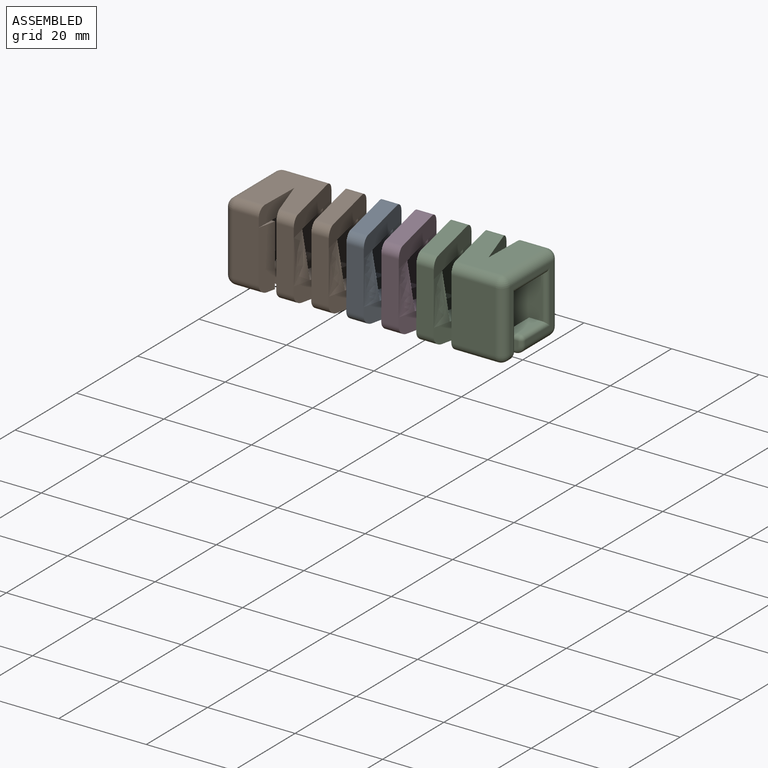
[diagram: assembled view]
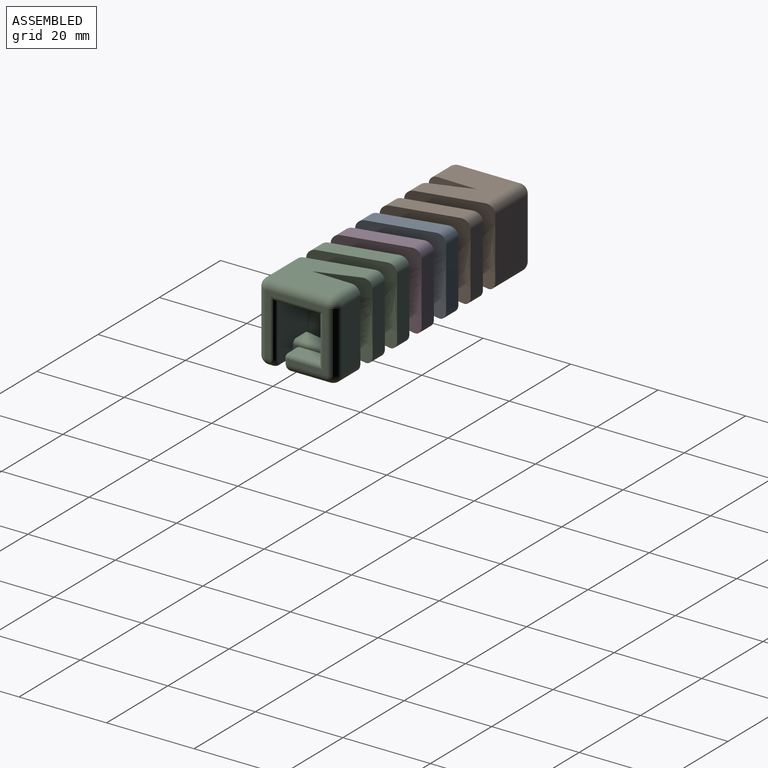
[diagram: assembled view, second angle]
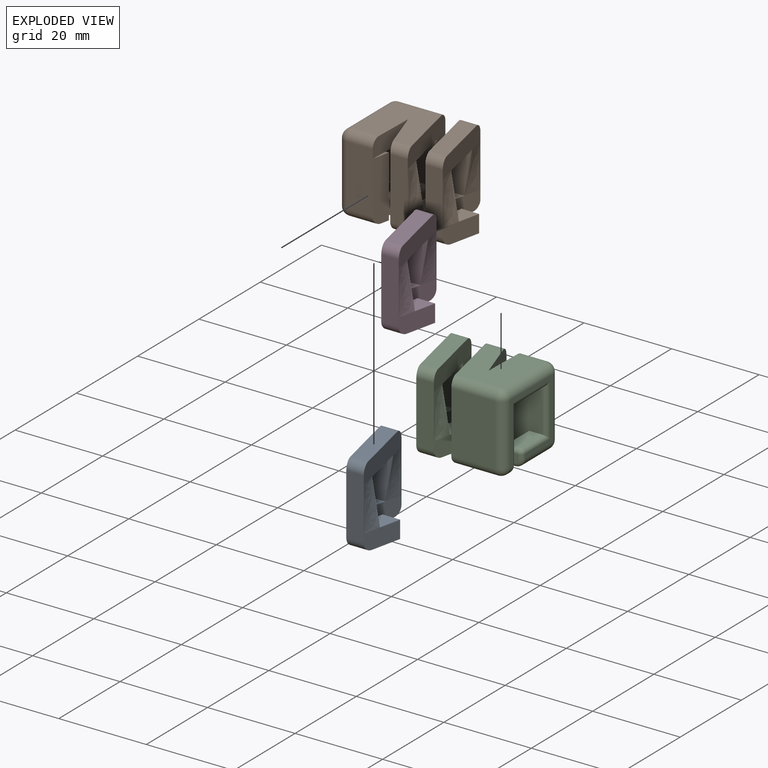
[diagram: exploded view]
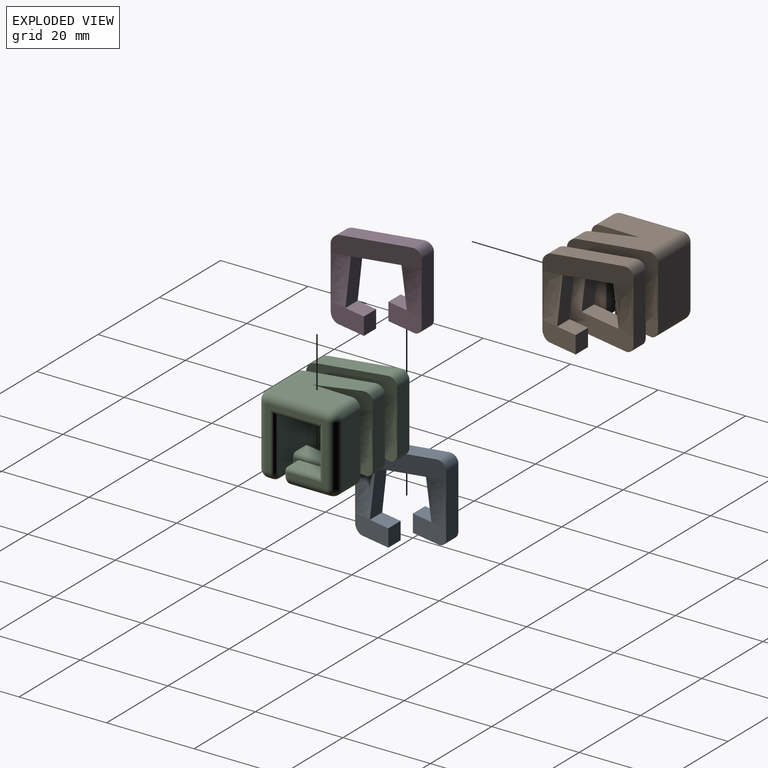
[diagram: exploded view, second angle]
ASSEMBLY  parts=4 mates=3
PART A: 26 faces, bbox 12x18x18 mm
  f0: bspline ~10x4mm, area 40.5mm2, adj f1,f3,f6,f10
  f1: plane 10x5.78mm, normal (0,1,0), area 40mm2, adj f0,f2,f8,f9
  f2: bspline ~10x4mm, area 40.5mm2, adj f1,f3,f4,f11
  f3: plane 14x4mm, normal (0,-1,0), area 56mm2, adj f0,f2,f4,f6,f10,f11,f23,f25
  f4: plane 9x4mm, normal (0.98,-0.22,0), area 36mm2, adj f2,f3,f5,f7,f8,f23
  f5: plane 4x4mm, normal (0,1,0), area 16mm2, adj f4,f6,f7,f8
  f6: plane 9x4mm, normal (-0.98,0.22,0), area 36mm2, adj f0,f3,f5,f7,f8,f23
  f7: plane 7x5.56mm, normal (0,0,-1), area 28mm2, adj f4,f5,f6,f23
  f8: plane 5.11x5mm, normal (0,0,1), area 20mm2, adj f1,f4,f5,f6
  f9: plane 10x6.22mm, normal (0,0,-1), area 40mm2, adj f1,f10,f11,f15
  f10: plane 18x4mm, normal (-0.98,-0.22,0), area 72mm2, adj f0,f3,f9,f12,f13,f16,f24,f25
  f11: plane 18x4mm, normal (0.98,0.22,0), area 72mm2, adj f2,f3,f9,f12,f13,f14,f24,f25
  f12: plane 14x4mm, normal (0,1,0), area 56mm2, adj f10,f11,f14,f16,f17,f19,f22,f24
  f13: plane 14x7.11mm, normal (0,0,1), area 56mm2, adj f10,f11,f24,f25
  f14: bspline ~10x4mm, area 40.5mm2, adj f11,f12,f15,f19
  f15: plane 10x5.78mm, normal (0,-1,0), area 40mm2, adj f9,f14,f16,f21
  f16: bspline ~10x4mm, area 40.5mm2, adj f10,f12,f15,f17
  f17: plane 9x4mm, normal (-0.98,0.22,0), area 36mm2, adj f12,f16,f18,f20,f21,f22
  f18: plane 4x4mm, normal (0,-1,0), area 16mm2, adj f17,f19,f20,f21
  f19: plane 9x4mm, normal (0.98,-0.22,0), area 36mm2, adj f12,f14,f18,f20,f21,f22
  f20: plane 7x5.56mm, normal (0,0,-1), area 28mm2, adj f17,f18,f19,f22
  f21: plane 5.11x5mm, normal (0,0,1), area 20mm2, adj f15,f17,f18,f19
  f22: cylinder r=2mm len=4.44mm, axis (1,0,0), area 12.6mm2, adj f12,f17,f19,f20
  f23: cylinder r=2mm len=4.44mm, axis (1,0,0), area 12.6mm2, adj f3,f4,f6,f7
  f24: cylinder r=2mm len=4.44mm, axis (1,0,0), area 12.6mm2, adj f10,f11,f12,f13
  f25: cylinder r=2mm len=4.44mm, axis (-1,0,0), area 12.6mm2, adj f3,f10,f11,f13
PART B: 86 faces, bbox 26.2x18x18.2 mm
  f0: plane 10x6.22mm, normal (0,0,1), area 40mm2, adj f1,f3,f20,f45
  f1: plane 18x4mm, normal (-0.98,0.22,0), area 72mm2, adj f0,f2,f4,f5,f19,f44,f64,f65
  f2: plane 14x4mm, normal (0,-1,0), area 56mm2, adj f1,f3,f23,f28,f44,f46,f62,f65
  f3: plane 18x4mm, normal (0.98,-0.22,0), area 72mm2, adj f0,f2,f4,f5,f21,f46,f64,f65
  f4: plane 14x4mm, normal (0,1,0), area 56mm2, adj f1,f3,f12,f13,f19,f21,f47,f64
  f5: plane 14x7.11mm, normal (0,0,-1), area 56mm2, adj f1,f3,f64,f65
  f6: plane 9x4mm, normal (0.98,-0.22,0), area 36mm2, adj f7,f9,f10,f11,f16,f63
  f7: plane 4x4mm, normal (0,1,0), area 16mm2, adj f6,f8,f10,f11
  f8: plane 9x4mm, normal (-0.98,0.22,0), area 36mm2, adj f7,f9,f10,f11,f18,f63
  f9: plane 14x4mm, normal (0,-1,0), area 56mm2, adj f6,f8,f12,f13,f16,f18,f48,f63
  f10: plane 7x5.56mm, normal (0,0,-1), area 28mm2, adj f6,f7,f8,f63
  f11: plane 5.11x5mm, normal (0,0,1), area 20mm2, adj f6,f7,f8,f17
  f12: plane 18x4mm, normal (-0.98,-0.22,0), area 72mm2, adj f4,f9,f14,f15,f18,f19,f47,f48
  f13: plane 18x4mm, normal (0.98,0.22,0), area 72mm2, adj f4,f9,f14,f15,f16,f21,f47,f48
  f14: plane 14x7.11mm, normal (0,0,1), area 56mm2, adj f12,f13,f47,f48
  f15: plane 10x6.22mm, normal (0,0,-1), area 40mm2, adj f12,f13,f17,f20
  f16: bspline ~10x4mm, area 40.5mm2, adj f6,f9,f13,f17
  f17: plane 10x5.78mm, normal (0,1,0), area 40mm2, adj f11,f15,f16,f18
  f18: bspline ~10x4mm, area 40.5mm2, adj f8,f9,f12,f17
  f19: bspline ~10x4mm, area 40.5mm2, adj f1,f4,f12,f20
  f20: plane 10x5.78mm, normal (0,-1,0), area 40mm2, adj f0,f15,f19,f21
  f21: bspline ~10x4mm, area 40.5mm2, adj f3,f4,f13,f20
  f22: plane 14.11x10mm, normal (0,0,-1), area 120.8mm2, adj f23,f27,f28,f31,f39,f45,f77
  f23: plane 18x4mm, normal (0.98,0.22,0), area 72mm2, adj f2,f22,f24,f29,f36,f46,f55,f62
  f24: plane 14x10mm, normal (0,1,0), area 140mm2, adj f23,f34,f36,f55,f58,f61
  f25: plane 14x14mm, normal (-1,0,0), area 48mm2, adj f50,f53,f56,f57,f61,f76,f77,f78
  f26: plane 14x6mm, normal (0,-1,0), area 84mm2, adj f27,f38,f49,f52,f53
  f27: plane 11.17x4mm, normal (1,-0.02,0), area 43.8mm2, adj f22,f26,f28,f29,f37,f52
  f28: plane 11.17x4mm, normal (-0.95,-0.32,0), area 46.2mm2, adj f2,f22,f27,f29,f44,f62
  f29: plane 14x13.56mm, normal (0,0,1), area 152.9mm2, adj f23,f27,f28,f52,f55,f56,f62
  f30: plane 7x3.09mm, normal (0,0,1), area 16.2mm2, adj f31,f66,f69,f70
  f31: plane 13x11.89mm, normal (0,-1,0), area 125.2mm2, adj f22,f30,f32,f34,f36,f66,f69,f74
  f32: plane 7x2mm, normal (-1,0,0), area 14mm2, adj f31,f69,f72,f73
  f33: plane 3x1.53mm, normal (0,-1,0), area 4.6mm2, adj f35,f67,f70,f72
  f34: plane 11.22x4mm, normal (0.98,-0.22,0), area 37.7mm2, adj f24,f31,f35,f36,f58,f66,f67
  f35: plane 10x9.56mm, normal (0,0,-1), area 39.3mm2, adj f33,f34,f57,f58,f67,f73,f74
  f36: bspline ~10x4mm, area 40.5mm2, adj f23,f24,f31,f34
  f37: plane 4x0.89mm, normal (0,0,1), area 1.6mm2, adj f27,f38,f39
  f38: plane 14x4mm, normal (0.98,-0.22,0), area 56.5mm2, adj f26,f37,f39,f42,f49
  f39: plane 14x7.89mm, normal (0,1,0), area 98.4mm2, adj f22,f37,f38,f40,f42,f43,f78
  f40: plane 7x4mm, normal (1,0,0), area 28mm2, adj f39,f42,f43,f83
  f41: plane 2x2mm, normal (0,1,0), area 3.8mm2, adj f81,f82,f83,f84,f85
  f42: plane 9x6.89mm, normal (0,0,-1), area 27.3mm2, adj f38,f39,f40,f49,f50,f85
  f43: plane 7x3mm, normal (0,0,1), area 21mm2, adj f39,f40,f79,f81
  f44: bspline ~10x4mm, area 40.9mm2, adj f1,f2,f28,f45
  f45: plane 10x6.22mm, normal (0,1,0), area 42.2mm2, adj f0,f22,f44,f46
  f46: bspline ~10x4mm, area 40.5mm2, adj f2,f3,f23,f45
  f47: cylinder r=2mm len=4.44mm, axis (1,0,0), area 12.6mm2, adj f4,f12,f13,f14
  f48: cylinder r=2mm len=4.44mm, axis (-1,0,0), area 12.6mm2, adj f9,f12,f13,f14
  f49: cylinder r=2mm len=6.44mm, axis (1,0,0), area 19.4mm2, adj f26,f38,f42,f51
  f50: cylinder r=2mm len=9mm, axis (0,-1,0), area 28.3mm2, adj f25,f42,f51,f84
  f51: sphere r=2mm, area 6.3mm2, adj f49,f50,f53
  f52: cylinder r=2mm len=6.05mm, axis (-1,0,0), area 18.9mm2, adj f26,f27,f29,f54
  f53: cylinder r=2mm len=14mm, axis (0,0,-1), area 44mm2, adj f25,f26,f51,f54
  f54: sphere r=2mm, area 6.3mm2, adj f52,f53,f56
  f55: cylinder r=2mm len=10.44mm, axis (1,0,0), area 31.9mm2, adj f23,f24,f29,f59
  f56: cylinder r=2mm len=14mm, axis (0,1,0), area 44mm2, adj f25,f29,f54,f59
  f57: cylinder r=2mm len=2mm, axis (0,1,0), area 3.1mm2, adj f25,f35,f60,f75
  f58: cylinder r=2mm len=10mm, axis (1,0,0), area 30.9mm2, adj f24,f34,f35,f60
  f59: sphere r=2mm, area 6.3mm2, adj f55,f56,f61
  f60: sphere r=2mm, area 6.3mm2, adj f57,f58,f61
  f61: cylinder r=2mm len=14mm, axis (0,0,-1), area 44mm2, adj f24,f25,f59,f60
  f62: cylinder r=2mm len=4.67mm, axis (-1,0,0), area 12.8mm2, adj f2,f23,f28,f29
  f63: cylinder r=2mm len=4.44mm, axis (-1,0,0), area 12.6mm2, adj f6,f8,f9,f10
  f64: cylinder r=2mm len=4.44mm, axis (1,0,0), area 12.6mm2, adj f1,f3,f4,f5
  f65: cylinder r=2mm len=4.44mm, axis (-1,0,0), area 12.6mm2, adj f1,f2,f3,f5
  f66: cylinder r=1mm len=7.43mm, axis (0.22,0.98,0), area 11.5mm2, adj f30,f31,f34,f68
  f67: cylinder r=1mm len=3mm, axis (0,0,1), area 4.1mm2, adj f33,f34,f35,f68
  f68: sphere r=1mm, area 1.4mm2, adj f66,f67,f70
  f69: cylinder r=1mm len=7mm, axis (0,-1,0), area 11mm2, adj f30,f31,f32,f71
  f70: cylinder r=1mm len=1.53mm, axis (1,0,0), area 2.4mm2, adj f30,f33,f68,f71
  f71: sphere r=1mm, area 1.6mm2, adj f69,f70,f72
  f72: cylinder r=1mm len=3mm, axis (0,0,-1), area 4.1mm2, adj f32,f33,f71,f73
  f73: cylinder r=1mm len=9mm, axis (0,1,0), area 12.6mm2, adj f32,f35,f72,f74
  f74: cylinder r=1mm len=5mm, axis (-1,0,0), area 6.9mm2, adj f31,f35,f73,f75
  f75: torus R=1mm, axis (0,1,0), area 4mm2, adj f31,f57,f74,f76
  f76: cylinder r=1mm len=13mm, axis (0,0,1), area 19.4mm2, adj f25,f31,f75,f77
  f77: cylinder r=1mm len=12mm, axis (0,-1,0), area 16.8mm2, adj f22,f25,f76,f78
  f78: cylinder r=1mm len=12mm, axis (0,0,1), area 16.8mm2, adj f25,f39,f77,f79
  f79: cylinder r=1mm len=8mm, axis (0,1,0), area 11.6mm2, adj f25,f43,f78,f80
  f80: sphere r=1mm, area 1.6mm2, adj f79,f81,f82
  f81: cylinder r=1mm len=3mm, axis (-1,0,0), area 4.1mm2, adj f41,f43,f80,f83
  f82: cylinder r=1mm len=1mm, axis (0,0,-1), area 1.6mm2, adj f25,f41,f80,f84
  f83: cylinder r=1mm len=4mm, axis (0,0,1), area 5.1mm2, adj f40,f41,f81,f85
  f84: torus R=1mm, axis (0,1,0), area 4mm2, adj f41,f50,f82,f85
  f85: cylinder r=1mm len=2mm, axis (1,0,0), area 2.6mm2, adj f41,f42,f83,f84
PART C: same geometry as B
PART D: same geometry as A
PLACE A at identity
PLACE B at identity
PLACE C rot(axis=(0,0,1),180deg) t=(52,0,0)mm
PLACE D t=(8,0,0)mm
MATE fastened A.f18 <-> B.f7  axis (0,-1,0) through (18,0,-2)mm
MATE fastened D.f18 <-> A.f5  axis (0,-1,0) through (26,0,-2)mm
MATE fastened C.f7 <-> D.f5  axis (0,-1,0) through (34,0,-2)mm
